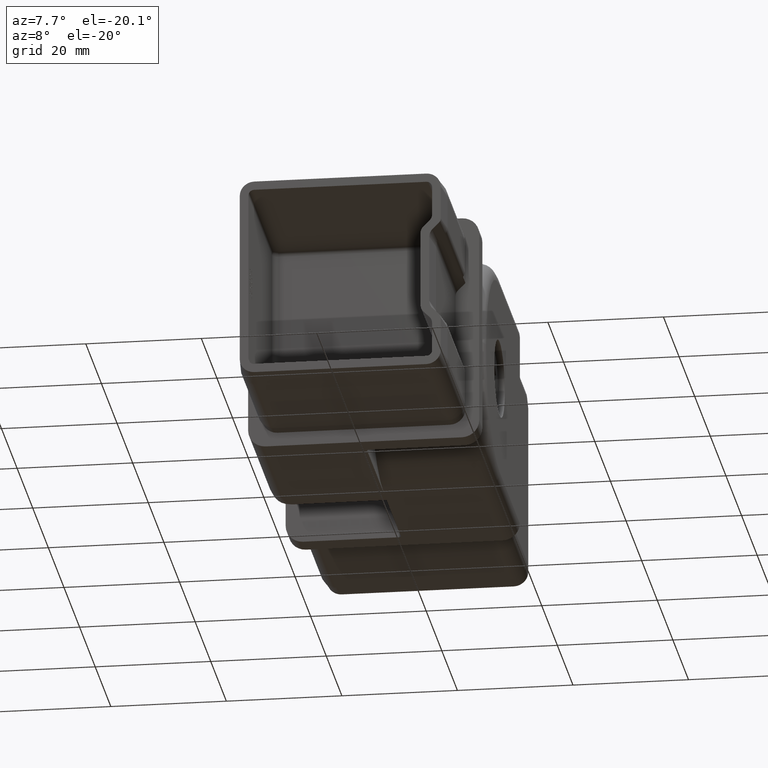
[diagram: clean part render]
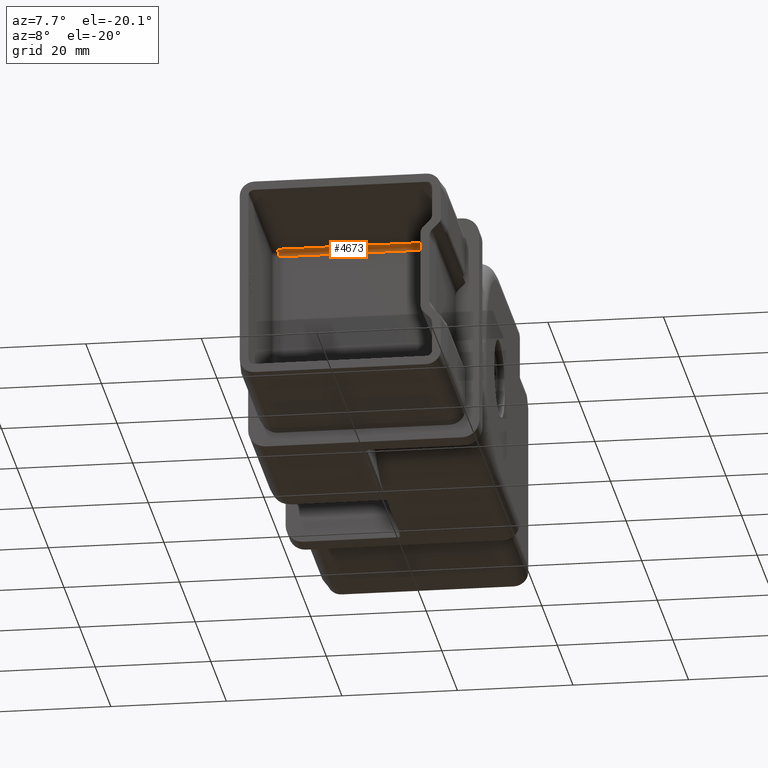
[diagram: same view with one face highlighted and labeled with its STEP entity id]
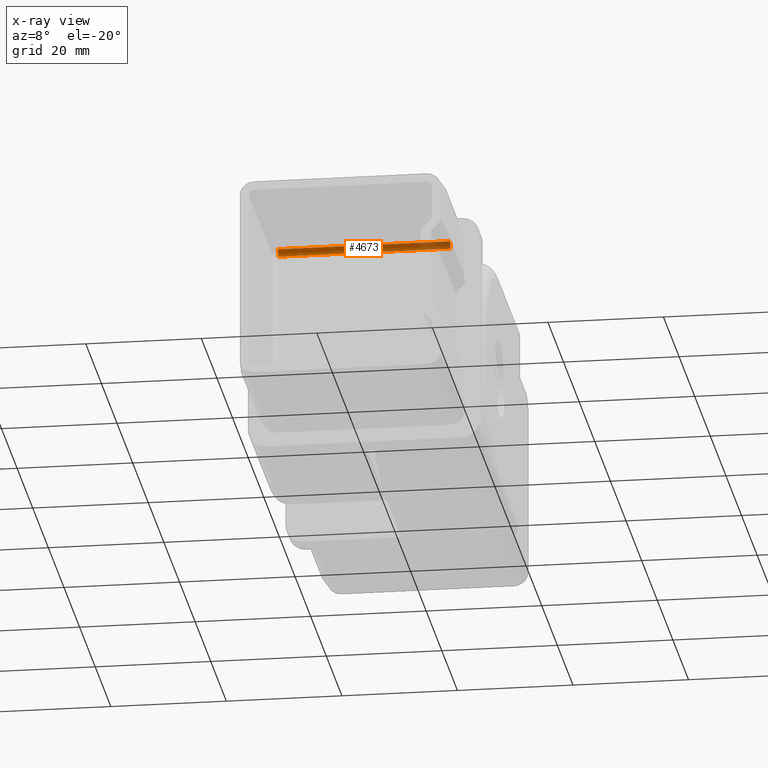
[diagram: x-ray of the same camera — body ghosted, the highlighted face saturated]
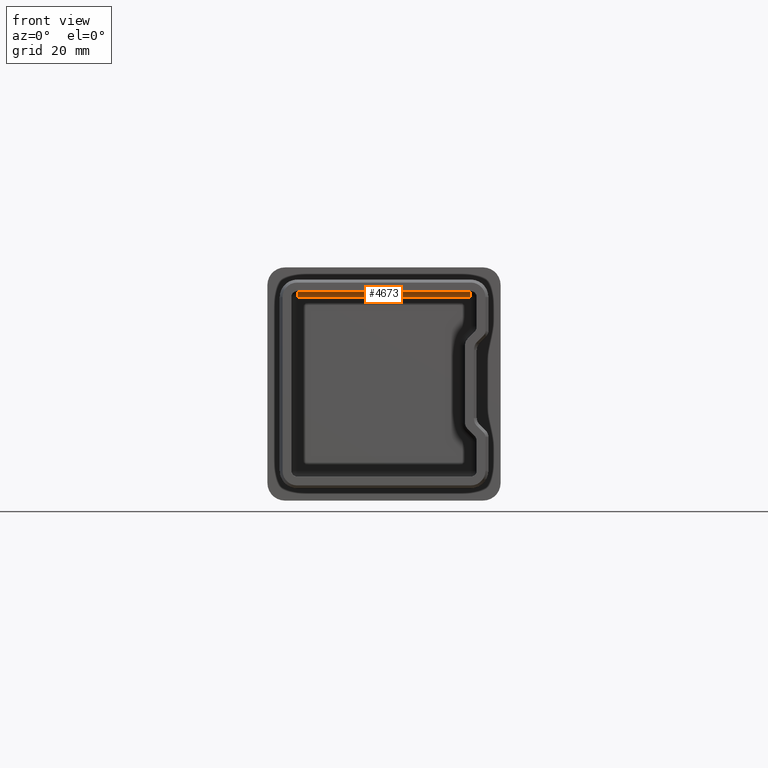
[diagram: same view with one face highlighted and labeled with its STEP entity id]
A machine part, auxiliary view. The second image highlights one B-rep face of the part: STEP entity #4673.
The next image is the same camera in x-ray: the body ghosted, the highlighted face saturated — about 17% of this face is hidden behind the body in this view.
A second angle (front view) of the same face is appended — the face is thin or edge-on in the first view.
In plain terms, the highlighted cylindrical surface (edge-blend (fillet) strip) has radius 1 mm, axis along (1, 0, 0).
Its self-contained STEP definition (entity closure, byte-faithful):
#318 = ORIENTED_EDGE ( 'NONE', *, *, #15145, .F. ) ;
#416 = DIRECTION ( 'NONE',  ( 1.000000000000000000, -0.0000000000000000000, -0.0000000000000000000 ) ) ;
#506 = DIRECTION ( 'NONE',  ( -1.000000000000000000, 0.0000000000000000000, 0.0000000000000000000 ) ) ;
#677 = CIRCLE ( 'NONE', #3602, 1.000000000000000900 ) ;
#1163 = LINE ( 'NONE', #10485, #2473 ) ;
#1593 = VECTOR ( 'NONE', #416, 1000.000000000000000 ) ;
#2150 = CARTESIAN_POINT ( 'NONE',  ( 14.90000000000000400, 1.000000000000000000, 14.90000000000000000 ) ) ;
#2319 = CYLINDRICAL_SURFACE ( 'NONE', #4583, 1.000000000000000900 ) ;
#2473 = VECTOR ( 'NONE', #506, 1000.000000000000000 ) ;
#2602 = CARTESIAN_POINT ( 'NONE',  ( -14.89999999999999700, 1.000000000000000000, 14.89999999999999700 ) ) ;
#3458 = ORIENTED_EDGE ( 'NONE', *, *, #7940, .F. ) ;
#3602 = AXIS2_PLACEMENT_3D ( 'NONE', #7854, #14724, #9236 ) ;
#4583 = AXIS2_PLACEMENT_3D ( 'NONE', #14884, #10813, #16170 ) ;
#4673 = ADVANCED_FACE ( 'NONE', ( #8202 ), #2319, .F. ) ;
#5486 = VERTEX_POINT ( 'NONE', #8152 ) ;
#6727 = VERTEX_POINT ( 'NONE', #12641 ) ;
#6766 = CARTESIAN_POINT ( 'NONE',  ( 14.90000000000000700, 0.0000000000000000000, 14.90000000000000000 ) ) ;
#7854 = CARTESIAN_POINT ( 'NONE',  ( -14.89999999999999700, 0.0000000000000000000, 14.89999999999999700 ) ) ;
#7940 = EDGE_CURVE ( 'NONE', #13756, #14520, #1163, .T. ) ;
#8152 = CARTESIAN_POINT ( 'NONE',  ( 14.90000000000000700, 0.0000000000000000000, 15.89999999999999700 ) ) ;
#8202 = FACE_OUTER_BOUND ( 'NONE', #12377, .T. ) ;
#8365 = LINE ( 'NONE', #8762, #1593 ) ;
#8700 = ORIENTED_EDGE ( 'NONE', *, *, #17827, .F. ) ;
#8762 = CARTESIAN_POINT ( 'NONE',  ( 14.90000000000000700, 0.0000000000000000000, 15.89999999999999700 ) ) ;
#9236 = DIRECTION ( 'NONE',  ( 0.0000000000000000000, 0.0000000000000000000, -1.000000000000000000 ) ) ;
#9751 = DIRECTION ( 'NONE',  ( 1.000000000000000000, 0.0000000000000000000, 0.0000000000000000000 ) ) ;
#10485 = CARTESIAN_POINT ( 'NONE',  ( -14.89999999999999700, 1.000000000000000000, 14.89999999999999700 ) ) ;
#10813 = DIRECTION ( 'NONE',  ( 1.000000000000000000, 0.0000000000000000000, 0.0000000000000000000 ) ) ;
#11256 = EDGE_CURVE ( 'NONE', #13756, #5486, #14437, .T. ) ;
#12377 = EDGE_LOOP ( 'NONE', ( #16832, #318, #8700, #3458 ) ) ;
#12641 = CARTESIAN_POINT ( 'NONE',  ( -14.89999999999999700, 0.0000000000000000000, 15.89999999999999700 ) ) ;
#13756 = VERTEX_POINT ( 'NONE', #2150 ) ;
#14437 = CIRCLE ( 'NONE', #16627, 1.000000000000000900 ) ;
#14520 = VERTEX_POINT ( 'NONE', #2602 ) ;
#14724 = DIRECTION ( 'NONE',  ( 1.000000000000000000, 0.0000000000000000000, 0.0000000000000000000 ) ) ;
#14884 = CARTESIAN_POINT ( 'NONE',  ( 14.90000000000000700, 0.0000000000000000000, 14.89999999999999700 ) ) ;
#15145 = EDGE_CURVE ( 'NONE', #6727, #5486, #8365, .T. ) ;
#16170 = DIRECTION ( 'NONE',  ( 0.0000000000000000000, 0.0000000000000000000, -1.000000000000000000 ) ) ;
#16588 = DIRECTION ( 'NONE',  ( 0.0000000000000000000, 0.0000000000000000000, -1.000000000000000000 ) ) ;
#16627 = AXIS2_PLACEMENT_3D ( 'NONE', #6766, #9751, #16588 ) ;
#16832 = ORIENTED_EDGE ( 'NONE', *, *, #11256, .T. ) ;
#17827 = EDGE_CURVE ( 'NONE', #14520, #6727, #677, .T. ) ;